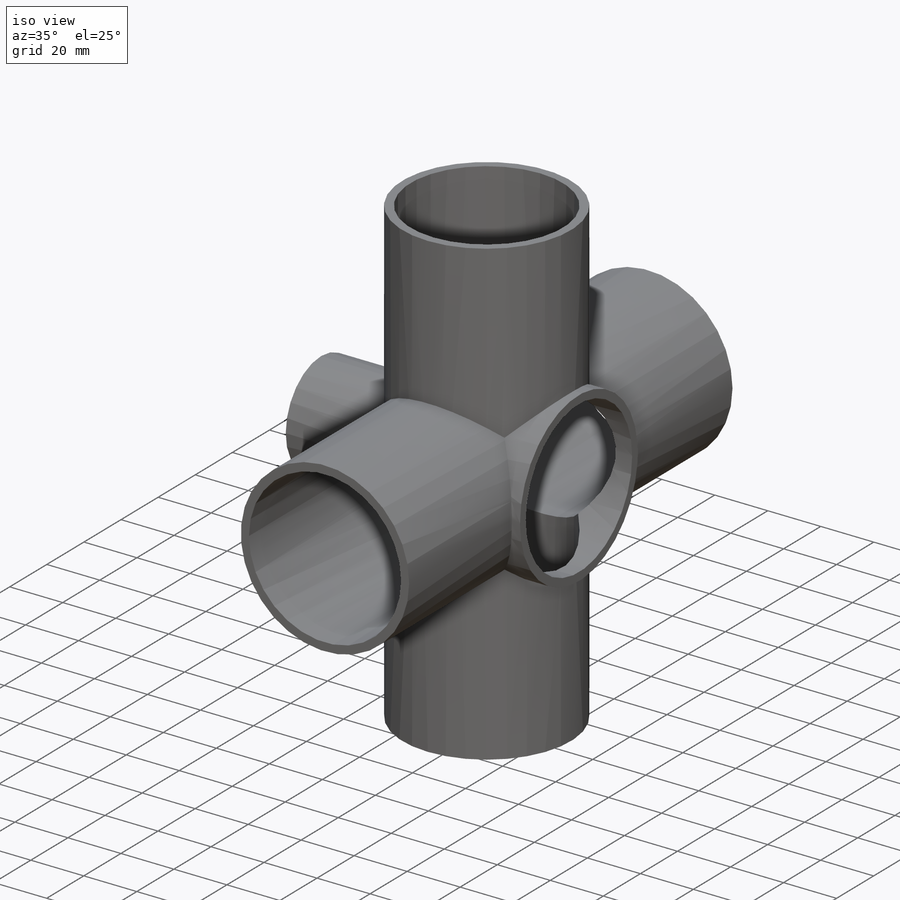
[diagram: iso view]
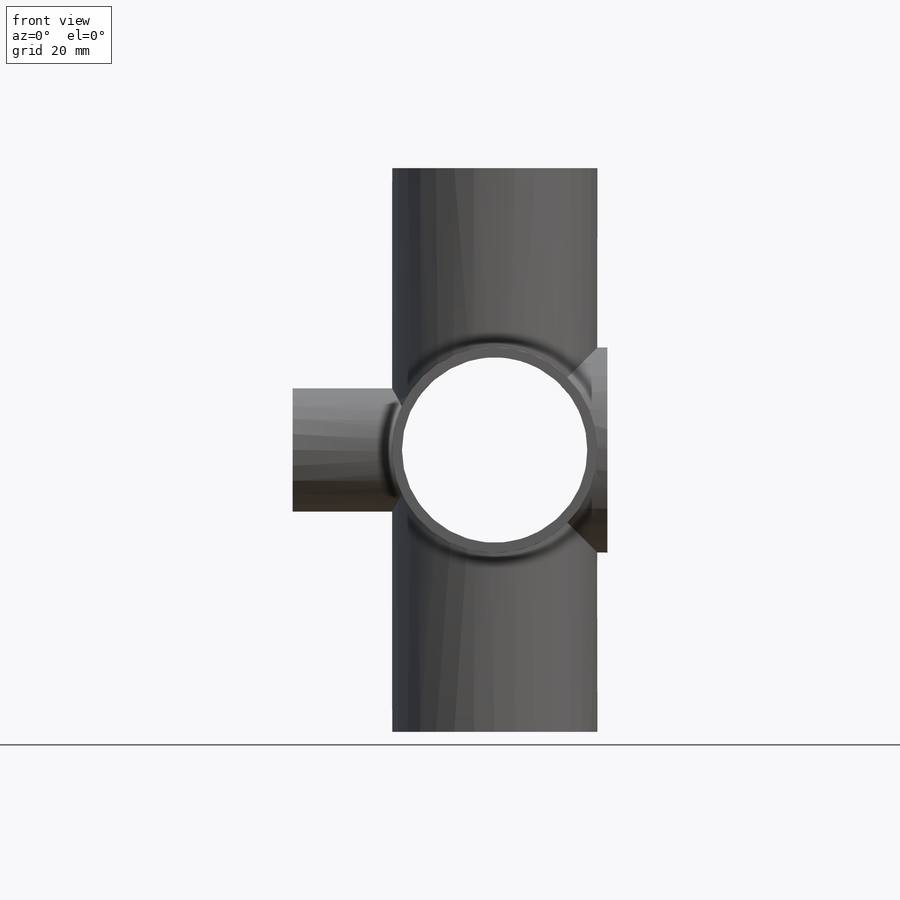
[diagram: front view]
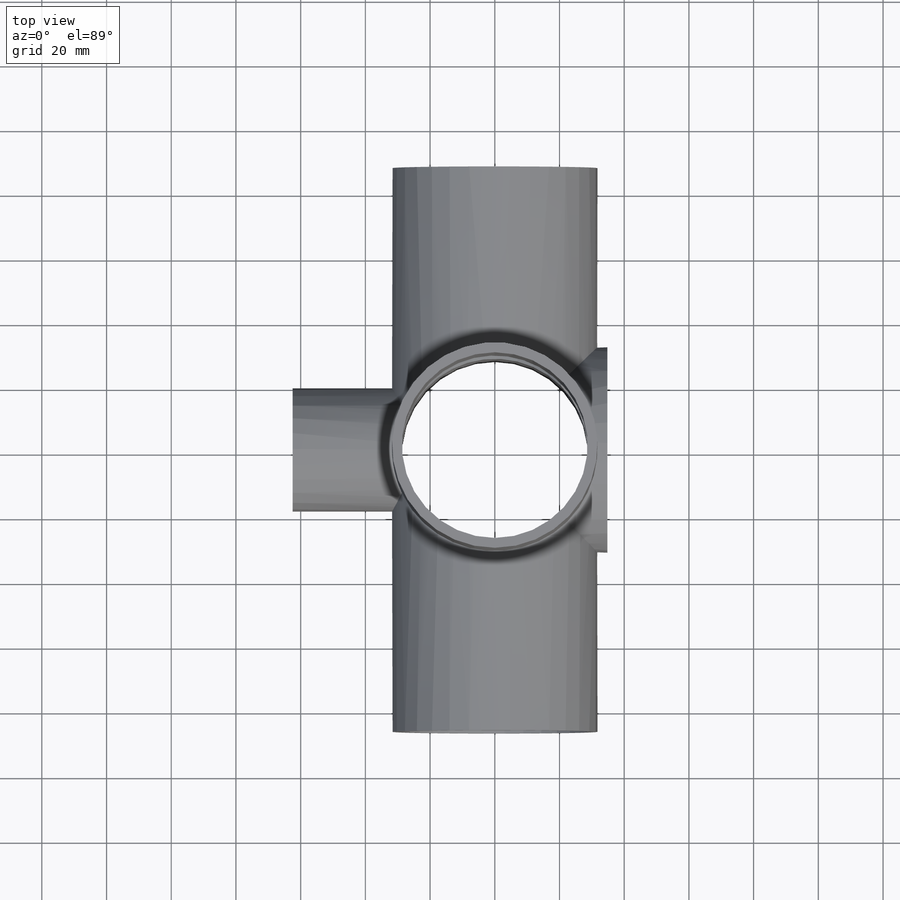
[diagram: top view]
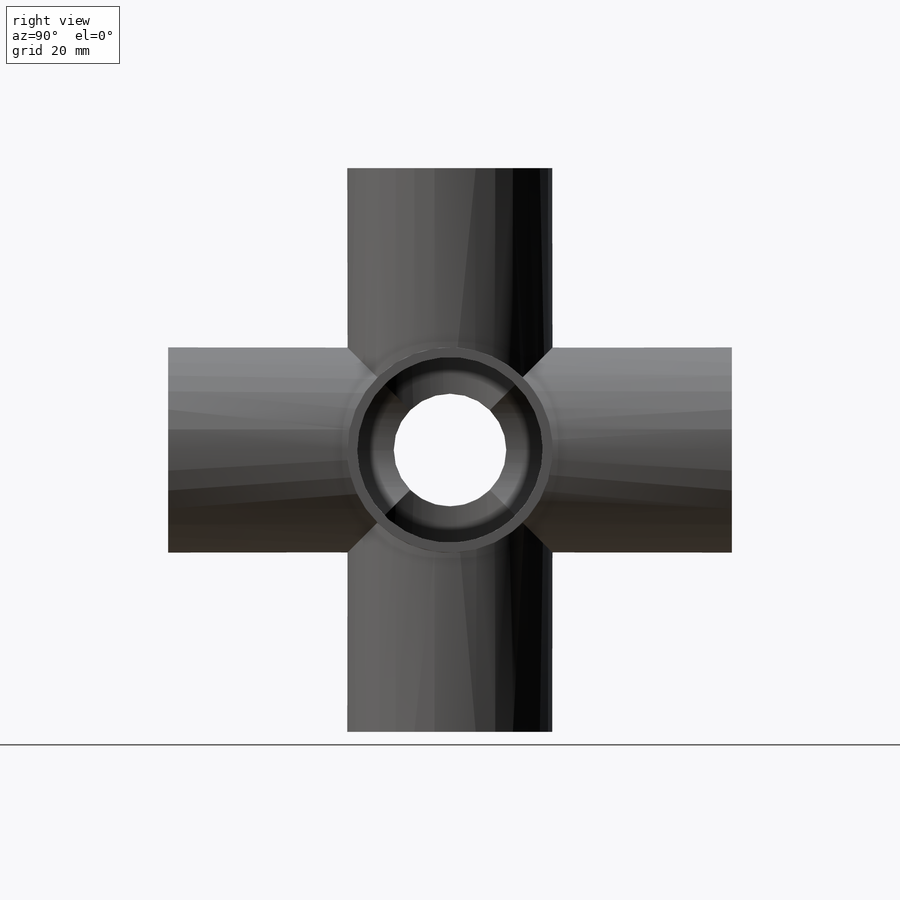
[diagram: right view]
SOLIDWORKS PART (.sldprt)
format: sldprt  version: not decoded by parser v0  size: 273,408 bytes
history: native  units: mm
features: sketch x11, extrude x4, cut_extrude x4, material x1 + 1 further entry (+16 scaffold rows collapsed)
feature tree (37):
  scaffold x16  (default folders/planes/origin — collapsed)
  material  "Material <not specified>"
  "Annotations"  RD1=62.484mm
  sketch  "Sketch1"  dims[D1=63.5mm]
  extrude  "Extrude3"  Depth=87.122mm
  sketch  "Sketch4"  dims[D1=~24.654109mm]
  extrude  "Extrude4"  Depth=87.122mm
  sketch  "Sketch6"  dims[D1=63.5mm]
  extrude  "Extrude5"  Depth=34.798mm
  sketch  "Sketch7"  dims[D1=~9.631393mm]
  extrude  "Extrude6"  Depth=62.484mm
  sketch  "Sketch9"  dims[D1=57.404mm]
  cut_extrude  "Cut-Extrude1"  [1 undecoded]
  sketch  "Sketch10"  dims[D1=57.404mm]
  cut_extrude  "Cut-Extrude2"  [1 undecoded]
  sketch  "Sketch11"  dims[D1=57.404mm]
  cut_extrude  "Cut-Extrude3"  [1 undecoded]
  sketch  "Sketch12"  dims[D1=34.798mm]
  cut_extrude  "Cut-Extrude4"  [1 undecoded]
  sketch  "Sketch13"
  sketch  "Sketch14"
  sketch  "Sketch15"
decode coverage: 12 of 19 modeling features carry decoded parameters; 1 rows unclassified (native names shown)
note: ~ marks probable driven/reference dimensions
note: 4 parameter values undecoded
summary: no parameter record found for 4 features
note: suppression state not decoded; provenance and decode notes live in map.json
